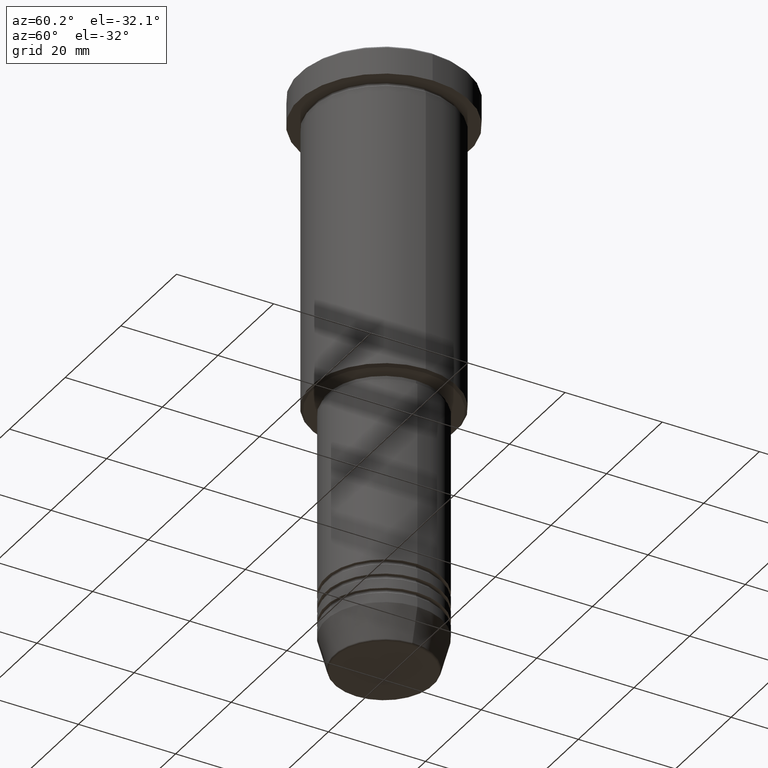
[diagram: clean part render]
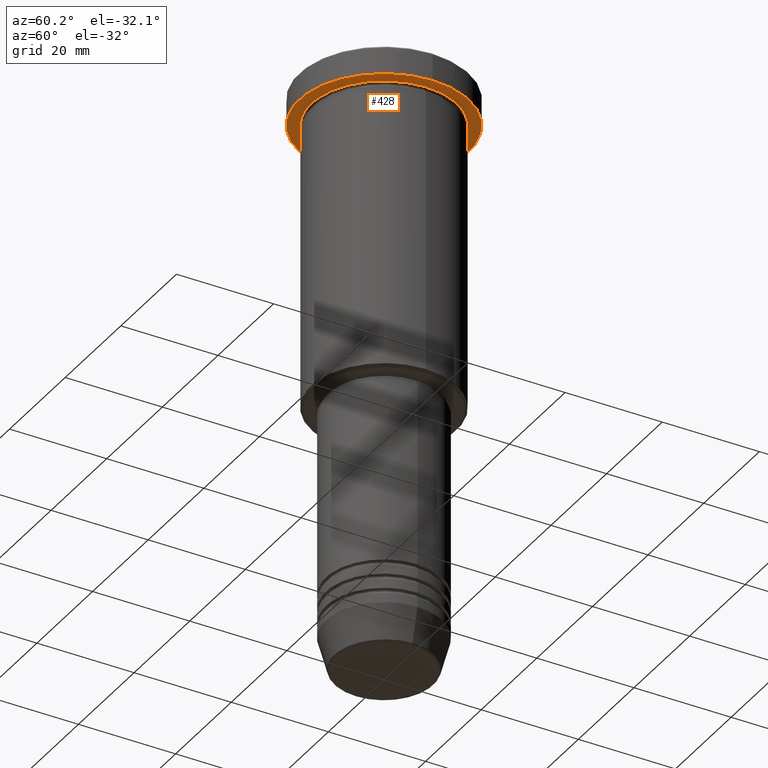
[diagram: same view with one face highlighted and labeled with its STEP entity id]
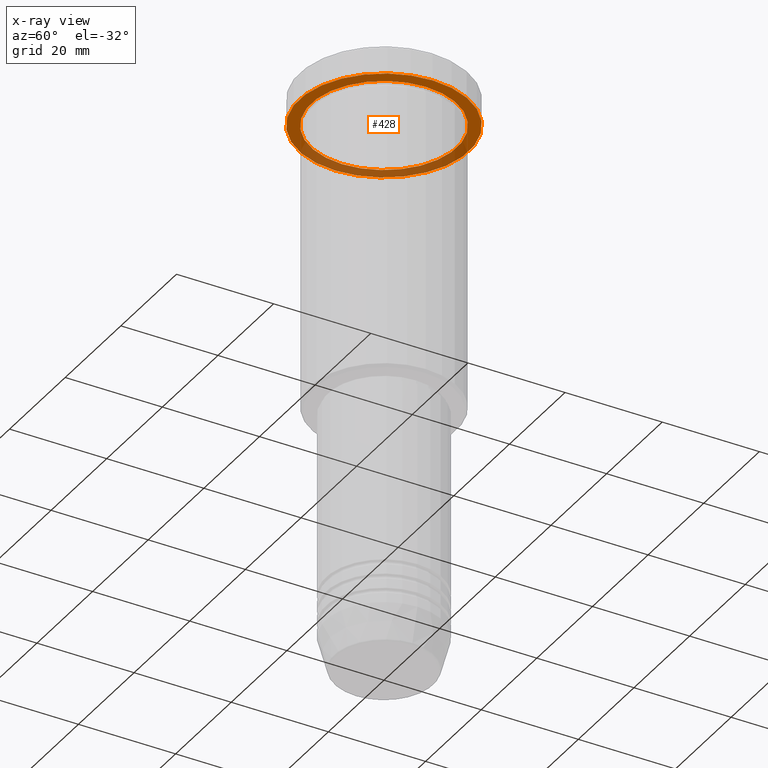
[diagram: x-ray of the same camera — body ghosted, the highlighted face saturated]
A machine part, auxiliary view. The second image highlights one B-rep face of the part: STEP entity #428.
The next image is the same camera in x-ray: the body ghosted, the highlighted face saturated — about 35% of this face is hidden behind the body in this view.
In plain terms, the highlighted planar face has unit normal (0, 0, -1).
Its self-contained STEP definition (entity closure, byte-faithful):
#17 = AXIS2_PLACEMENT_3D ( 'NONE', #515, #777, #64 ) ;
#30 = CIRCLE ( 'NONE', #705, 15.00000000000000000 ) ;
#61 = EDGE_CURVE ( 'NONE', #475, #824, #30, .T. ) ;
#64 = DIRECTION ( 'NONE',  ( -1.000000000000000000, 0.000000000000000000, 0.000000000000000000 ) ) ;
#139 = VERTEX_POINT ( 'NONE', #1047 ) ;
#143 = DIRECTION ( 'NONE',  ( -0.000000000000000000, -0.000000000000000000, 1.000000000000000000 ) ) ;
#148 = DIRECTION ( 'NONE',  ( -1.000000000000000000, 0.000000000000000000, 0.000000000000000000 ) ) ;
#161 = ORIENTED_EDGE ( 'NONE', *, *, #716, .T. ) ;
#171 = EDGE_LOOP ( 'NONE', ( #1094, #659 ) ) ;
#221 = CIRCLE ( 'NONE', #943, 17.50000000000000000 ) ;
#237 = CARTESIAN_POINT ( 'NONE',  ( 0.000000000000000000, 0.000000000000000000, -5.999999999999995559 ) ) ;
#291 = DIRECTION ( 'NONE',  ( -1.000000000000000000, 0.000000000000000000, -0.000000000000000000 ) ) ;
#350 = CIRCLE ( 'NONE', #1180, 17.50000000000000000 ) ;
#428 = ADVANCED_FACE ( 'NONE', ( #719, #1109 ), #478, .T. ) ;
#475 = VERTEX_POINT ( 'NONE', #761 ) ;
#478 = PLANE ( 'NONE',  #707 ) ;
#515 = CARTESIAN_POINT ( 'NONE',  ( 0.000000000000000000, 0.000000000000000000, -5.999999999999995559 ) ) ;
#551 = CARTESIAN_POINT ( 'NONE',  ( -15.00000000000000000, 0.000000000000000000, -5.999999999999994671 ) ) ;
#553 = CARTESIAN_POINT ( 'NONE',  ( 0.000000000000000000, 17.50000000000000000, -5.999999999999995559 ) ) ;
#572 = DIRECTION ( 'NONE',  ( -0.000000000000000000, -0.000000000000000000, 1.000000000000000000 ) ) ;
#591 = EDGE_CURVE ( 'NONE', #139, #1174, #350, .T. ) ;
#605 = CARTESIAN_POINT ( 'NONE',  ( 17.50000000000000000, 0.000000000000000000, -5.999999999999995559 ) ) ;
#631 = CIRCLE ( 'NONE', #17, 15.00000000000000000 ) ;
#659 = ORIENTED_EDGE ( 'NONE', *, *, #591, .F. ) ;
#705 = AXIS2_PLACEMENT_3D ( 'NONE', #1053, #855, #148 ) ;
#707 = AXIS2_PLACEMENT_3D ( 'NONE', #553, #1116, #291 ) ;
#716 = EDGE_CURVE ( 'NONE', #824, #475, #631, .T. ) ;
#719 = FACE_BOUND ( 'NONE', #1078, .T. ) ;
#761 = CARTESIAN_POINT ( 'NONE',  ( 15.00000000000000000, 1.836970198721029589E-15, -5.999999999999994671 ) ) ;
#772 = ORIENTED_EDGE ( 'NONE', *, *, #61, .T. ) ;
#777 = DIRECTION ( 'NONE',  ( -0.000000000000000000, -0.000000000000000000, 1.000000000000000000 ) ) ;
#781 = DIRECTION ( 'NONE',  ( 1.000000000000000000, 0.000000000000000000, 0.000000000000000000 ) ) ;
#824 = VERTEX_POINT ( 'NONE', #551 ) ;
#855 = DIRECTION ( 'NONE',  ( -0.000000000000000000, -0.000000000000000000, 1.000000000000000000 ) ) ;
#943 = AXIS2_PLACEMENT_3D ( 'NONE', #1084, #143, #781 ) ;
#961 = DIRECTION ( 'NONE',  ( 1.000000000000000000, 0.000000000000000000, 0.000000000000000000 ) ) ;
#1047 = CARTESIAN_POINT ( 'NONE',  ( -17.50000000000000000, 2.143131898507868248E-15, -5.999999999999995559 ) ) ;
#1053 = CARTESIAN_POINT ( 'NONE',  ( 0.000000000000000000, 0.000000000000000000, -5.999999999999995559 ) ) ;
#1078 = EDGE_LOOP ( 'NONE', ( #161, #772 ) ) ;
#1084 = CARTESIAN_POINT ( 'NONE',  ( 0.000000000000000000, 0.000000000000000000, -5.999999999999995559 ) ) ;
#1094 = ORIENTED_EDGE ( 'NONE', *, *, #1137, .F. ) ;
#1109 = FACE_OUTER_BOUND ( 'NONE', #171, .T. ) ;
#1116 = DIRECTION ( 'NONE',  ( 0.000000000000000000, 0.000000000000000000, -1.000000000000000000 ) ) ;
#1137 = EDGE_CURVE ( 'NONE', #1174, #139, #221, .T. ) ;
#1174 = VERTEX_POINT ( 'NONE', #605 ) ;
#1180 = AXIS2_PLACEMENT_3D ( 'NONE', #237, #572, #961 ) ;